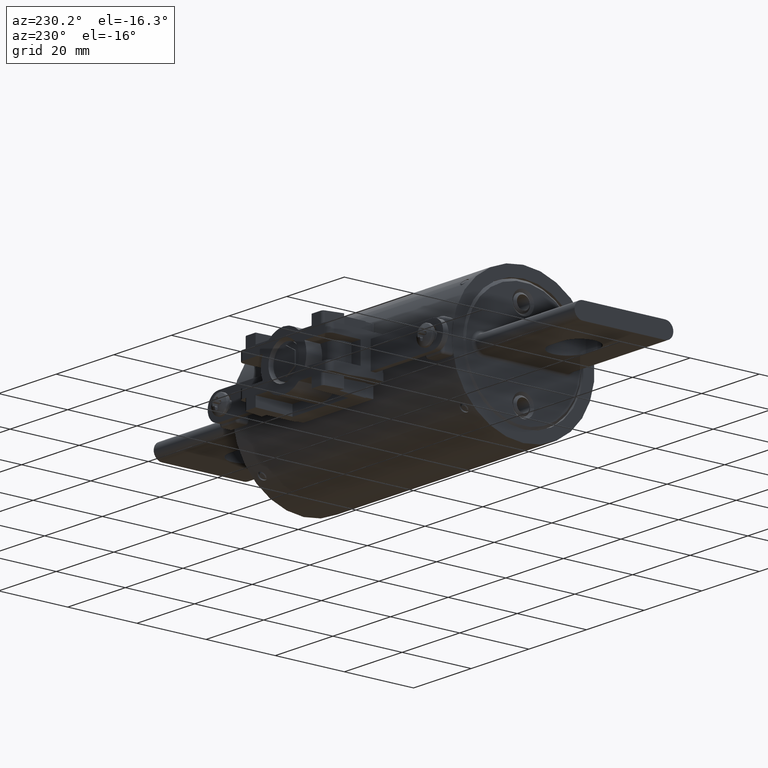
[diagram: clean part render]
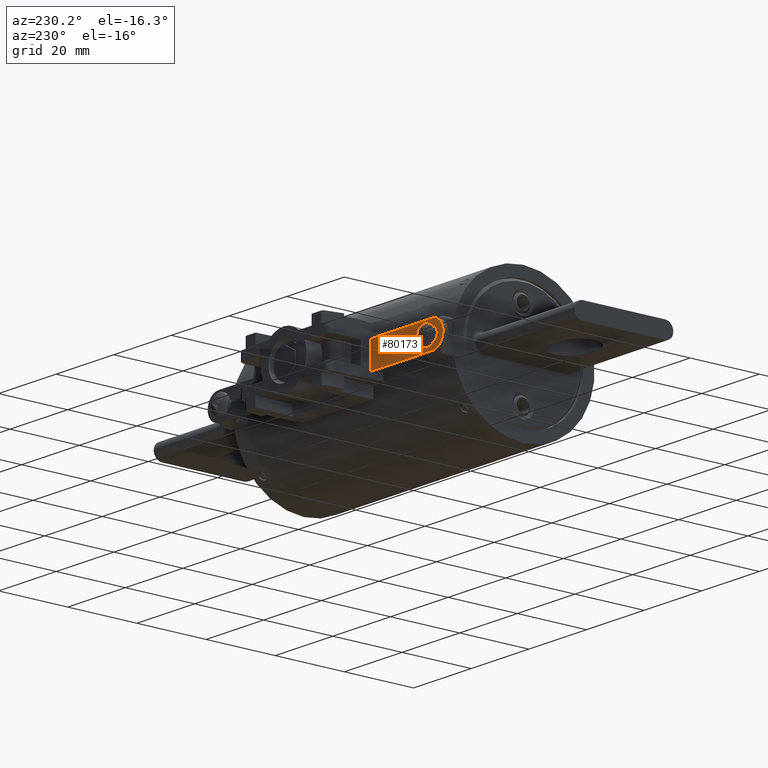
[diagram: same view with one face highlighted and labeled with its STEP entity id]
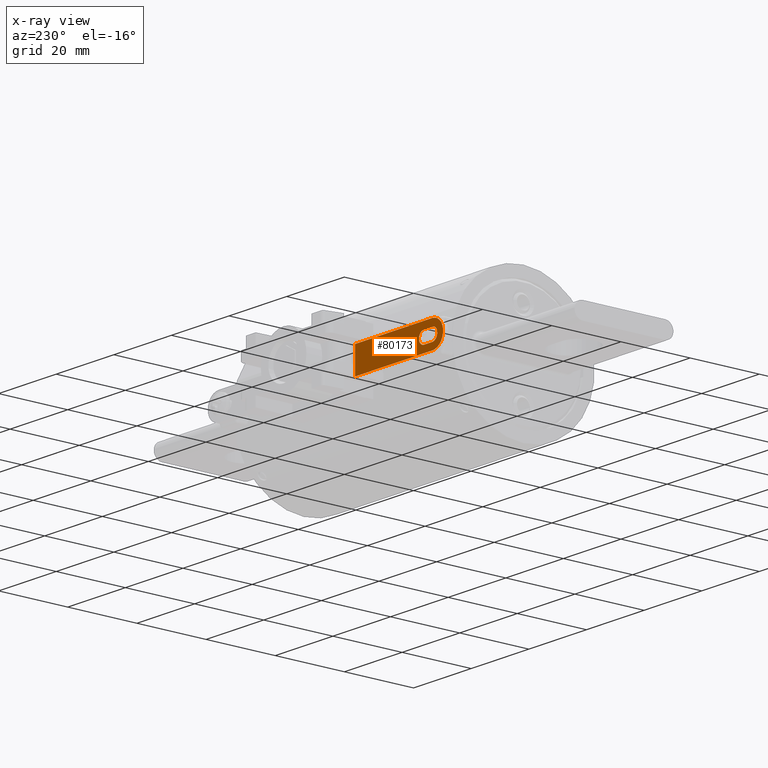
[diagram: x-ray of the same camera — body ghosted, the highlighted face saturated]
A machine part, auxiliary view. The second image highlights one B-rep face of the part: STEP entity #80173.
The next image is the same camera in x-ray: the body ghosted, the highlighted face saturated — about 0% of this face is hidden behind the body in this view.
In plain terms, the highlighted planar face has unit normal (0, -1, 0).
Its self-contained STEP definition (entity closure, byte-faithful):
#3267 = CARTESIAN_POINT ( 'NONE',  ( -1.460500000000000100, 1.003521418801261800, 0.1480000000000000800 ) ) ;
#3288 = EDGE_CURVE ( 'NONE', #97883, #83882, #102413, .T. ) ;
#3936 = DIRECTION ( 'NONE',  ( 1.000000000000000000, 0.0000000000000000000, -5.551115123125782700E-017 ) ) ;
#4109 = LINE ( 'NONE', #101500, #73277 ) ;
#5476 = VERTEX_POINT ( 'NONE', #80185 ) ;
#5533 = CARTESIAN_POINT ( 'NONE',  ( -1.348500000000000000, 1.003521418801262000, 0.07000000000000006200 ) ) ;
#8682 = VECTOR ( 'NONE', #51090, 39.37007874015748100 ) ;
#9081 = ORIENTED_EDGE ( 'NONE', *, *, #41583, .F. ) ;
#13655 = ORIENTED_EDGE ( 'NONE', *, *, #43802, .F. ) ;
#14935 = CARTESIAN_POINT ( 'NONE',  ( -1.458500000000000400, 1.003521418801262000, -0.06999999999999993700 ) ) ;
#16928 = CIRCLE ( 'NONE', #48984, 0.07000000000000007600 ) ;
#17067 = VERTEX_POINT ( 'NONE', #14935 ) ;
#17236 = CARTESIAN_POINT ( 'NONE',  ( -1.278500000000000000, 1.003521418801262000, 5.997684850954091400E-017 ) ) ;
#17457 = EDGE_CURVE ( 'NONE', #52405, #93748, #4109, .T. ) ;
#17469 = CARTESIAN_POINT ( 'NONE',  ( -0.4066352543805128400, 1.003521418801262000, -0.1479999999999999900 ) ) ;
#18789 = EDGE_LOOP ( 'NONE', ( #104676, #33171, #47427, #98262 ) ) ;
#18832 = DIRECTION ( 'NONE',  ( -4.635464519000336700E-018, 1.000000000000000000, -1.823160749417610700E-032 ) ) ;
#19580 = VECTOR ( 'NONE', #47553, 39.37007874015748100 ) ;
#20360 = FACE_OUTER_BOUND ( 'NONE', #18789, .T. ) ;
#21283 = CARTESIAN_POINT ( 'NONE',  ( -0.4066352543805128400, 1.003521418801262000, -0.1479999999999999900 ) ) ;
#24072 = CARTESIAN_POINT ( 'NONE',  ( -1.458500000000000400, 1.003521418801262000, 6.996885573116731900E-017 ) ) ;
#24175 = EDGE_CURVE ( 'NONE', #93748, #70236, #16928, .T. ) ;
#24419 = PLANE ( 'NONE',  #64503 ) ;
#24783 = DIRECTION ( 'NONE',  ( 2.123133656996186800E-016, -1.000000000000000000, 6.703168114348583600E-033 ) ) ;
#28544 = ORIENTED_EDGE ( 'NONE', *, *, #116918, .F. ) ;
#31470 = AXIS2_PLACEMENT_3D ( 'NONE', #24072, #87040, #33094 ) ;
#32660 = EDGE_CURVE ( 'NONE', #36012, #5476, #88714, .T. ) ;
#33094 = DIRECTION ( 'NONE',  ( 1.000000000000000000, 0.0000000000000000000, -5.551115123125782700E-017 ) ) ;
#33171 = ORIENTED_EDGE ( 'NONE', *, *, #3288, .F. ) ;
#35436 = EDGE_CURVE ( 'NONE', #83882, #36012, #35492, .T. ) ;
#35492 = LINE ( 'NONE', #113718, #8682 ) ;
#36012 = VERTEX_POINT ( 'NONE', #17469 ) ;
#36533 = AXIS2_PLACEMENT_3D ( 'NONE', #111982, #58124, #3936 ) ;
#38786 = DIRECTION ( 'NONE',  ( 1.000000000000000000, 2.123133656996187000E-016, -5.551115123125782700E-017 ) ) ;
#41098 = CARTESIAN_POINT ( 'NONE',  ( -1.348500000000000000, 1.003521418801261800, -0.06999999999999995100 ) ) ;
#41583 = EDGE_CURVE ( 'NONE', #70236, #69535, #78182, .T. ) ;
#43802 = EDGE_CURVE ( 'NONE', #69535, #17067, #88670, .T. ) ;
#47427 = ORIENTED_EDGE ( 'NONE', *, *, #95603, .T. ) ;
#47553 = DIRECTION ( 'NONE',  ( -1.000000000000000000, -6.014661575025810200E-017, 5.551115123125782700E-017 ) ) ;
#48984 = AXIS2_PLACEMENT_3D ( 'NONE', #104894, #50976, #113999 ) ;
#50976 = DIRECTION ( 'NONE',  ( -4.635464519000336700E-018, 1.000000000000000000, -1.823160749417610700E-032 ) ) ;
#51090 = DIRECTION ( 'NONE',  ( 1.000000000000000000, 2.123133656996187000E-016, -5.551115123125782700E-017 ) ) ;
#51479 = VECTOR ( 'NONE', #38786, 39.37007874015748100 ) ;
#52405 = VERTEX_POINT ( 'NONE', #66780 ) ;
#54541 = EDGE_LOOP ( 'NONE', ( #13655, #9081, #80691, #68877, #28544 ) ) ;
#58124 = DIRECTION ( 'NONE',  ( 4.635464519000238100E-018, -1.000000000000000000, 1.823160749417611200E-032 ) ) ;
#64503 = AXIS2_PLACEMENT_3D ( 'NONE', #78803, #24783, #87786 ) ;
#66780 = CARTESIAN_POINT ( 'NONE',  ( -1.458500000000000400, 1.003521418801262000, 0.07000000000000007600 ) ) ;
#68877 = ORIENTED_EDGE ( 'NONE', *, *, #17457, .F. ) ;
#69535 = VERTEX_POINT ( 'NONE', #41098 ) ;
#69620 = CIRCLE ( 'NONE', #31470, 0.07000000000000007600 ) ;
#70236 = VERTEX_POINT ( 'NONE', #17236 ) ;
#72821 = CARTESIAN_POINT ( 'NONE',  ( -1.348500000000000000, 1.003521418801262000, 6.386262909572896500E-017 ) ) ;
#73277 = VECTOR ( 'NONE', #92439, 39.37007874015748100 ) ;
#75280 = DIRECTION ( 'NONE',  ( 5.551115123125783900E-017, 1.848892746611746400E-032, 1.000000000000000000 ) ) ;
#78182 = CIRCLE ( 'NONE', #115678, 0.07000000000000007600 ) ;
#78803 = CARTESIAN_POINT ( 'NONE',  ( -1.608500000000000000, 1.003521418801261600, -0.1479999999999999400 ) ) ;
#80173 = ADVANCED_FACE ( 'NONE', ( #95035, #20360 ), #24419, .F. ) ;
#80185 = CARTESIAN_POINT ( 'NONE',  ( -0.4066352543805128400, 1.003521418801262000, 0.1479999999999999900 ) ) ;
#80691 = ORIENTED_EDGE ( 'NONE', *, *, #24175, .F. ) ;
#81820 = DIRECTION ( 'NONE',  ( 1.000000000000000000, 0.0000000000000000000, -5.551115123125782700E-017 ) ) ;
#83882 = VERTEX_POINT ( 'NONE', #86964 ) ;
#86964 = CARTESIAN_POINT ( 'NONE',  ( -1.460500000000000100, 1.003521418801262000, -0.1479999999999999400 ) ) ;
#87040 = DIRECTION ( 'NONE',  ( -4.635464519000336700E-018, 1.000000000000000000, -1.823160749417610700E-032 ) ) ;
#87786 = DIRECTION ( 'NONE',  ( -1.000000000000000000, -2.123133656996186800E-016, 5.551115123125782700E-017 ) ) ;
#88670 = LINE ( 'NONE', #92807, #19580 ) ;
#88714 = LINE ( 'NONE', #21283, #112726 ) ;
#92439 = DIRECTION ( 'NONE',  ( 1.000000000000000000, 6.014661575025810200E-017, -5.551115123125782700E-017 ) ) ;
#92721 = CARTESIAN_POINT ( 'NONE',  ( -1.608500000000000000, 1.003521418801261600, 0.1480000000000000800 ) ) ;
#92807 = CARTESIAN_POINT ( 'NONE',  ( -1.348500000000000000, 1.003521418801262000, -0.06999999999999995100 ) ) ;
#93748 = VERTEX_POINT ( 'NONE', #5533 ) ;
#95035 = FACE_BOUND ( 'NONE', #54541, .T. ) ;
#95603 = EDGE_CURVE ( 'NONE', #97883, #5476, #99231, .T. ) ;
#97883 = VERTEX_POINT ( 'NONE', #3267 ) ;
#98262 = ORIENTED_EDGE ( 'NONE', *, *, #32660, .F. ) ;
#99231 = LINE ( 'NONE', #92721, #51479 ) ;
#101500 = CARTESIAN_POINT ( 'NONE',  ( -1.348500000000000000, 1.003521418801262000, 0.07000000000000006200 ) ) ;
#102413 = CIRCLE ( 'NONE', #36533, 0.1480000000000001600 ) ;
#104676 = ORIENTED_EDGE ( 'NONE', *, *, #35436, .F. ) ;
#104894 = CARTESIAN_POINT ( 'NONE',  ( -1.348500000000000000, 1.003521418801262000, 6.386262909572896500E-017 ) ) ;
#111982 = CARTESIAN_POINT ( 'NONE',  ( -1.460500000000000100, 1.003521418801262000, 7.861690301383065100E-017 ) ) ;
#112726 = VECTOR ( 'NONE', #75280, 39.37007874015748100 ) ;
#113718 = CARTESIAN_POINT ( 'NONE',  ( -1.608500000000000000, 1.003521418801261600, -0.1479999999999999400 ) ) ;
#113999 = DIRECTION ( 'NONE',  ( 1.000000000000000000, 0.0000000000000000000, -5.551115123125782700E-017 ) ) ;
#115678 = AXIS2_PLACEMENT_3D ( 'NONE', #72821, #18832, #81820 ) ;
#116918 = EDGE_CURVE ( 'NONE', #17067, #52405, #69620, .T. ) ;